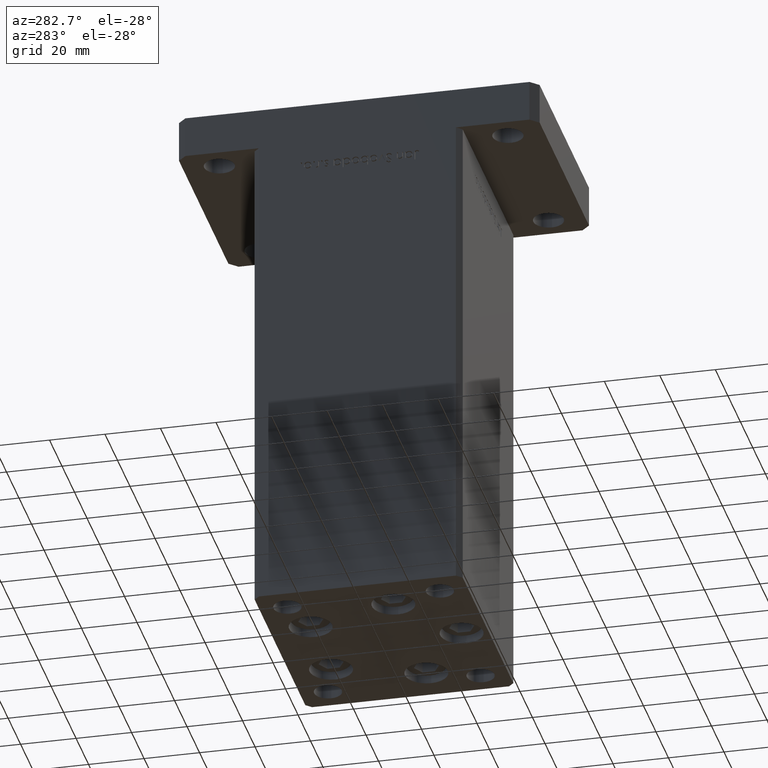
[diagram: clean part render]
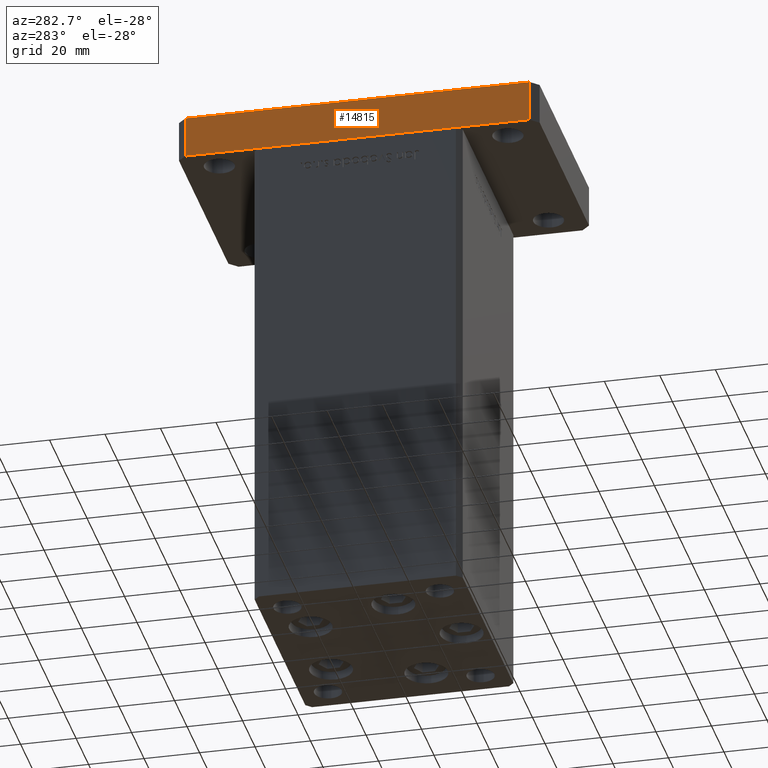
[diagram: same view with one face highlighted and labeled with its STEP entity id]
A machine part, auxiliary view. The second image highlights one B-rep face of the part: STEP entity #14815.
In plain terms, the highlighted planar face has unit normal (1, 0, 0).
Its self-contained STEP definition (entity closure, byte-faithful):
#282 = VERTEX_POINT ( 'NONE', #20340 ) ;
#459 = LINE ( 'NONE', #16966, #28863 ) ;
#2697 = VERTEX_POINT ( 'NONE', #23056 ) ;
#5038 = AXIS2_PLACEMENT_3D ( 'NONE', #48224, #18949, #15410 ) ;
#6388 = CARTESIAN_POINT ( 'NONE',  ( -42.49999999999999289, -62.00000000000001421, 15.00000000000000000 ) ) ;
#8395 = VECTOR ( 'NONE', #30206, 1000.000000000000000 ) ;
#8419 = CARTESIAN_POINT ( 'NONE',  ( -42.50000000000002132, 62.00000000000000711, 0.000000000000000000 ) ) ;
#9637 = EDGE_CURVE ( 'NONE', #282, #38320, #11307, .T. ) ;
#11307 = LINE ( 'NONE', #32171, #12639 ) ;
#12639 = VECTOR ( 'NONE', #28371, 1000.000000000000000 ) ;
#14815 = ADVANCED_FACE ( 'NONE', ( #19216 ), #23291, .F. ) ;
#15410 = DIRECTION ( 'NONE',  ( -2.238352872228137677E-16, 1.000000000000000000, 0.000000000000000000 ) ) ;
#16966 = CARTESIAN_POINT ( 'NONE',  ( -42.49999999999999289, -62.00000000000001421, 15.00000000000000000 ) ) ;
#17214 = VERTEX_POINT ( 'NONE', #8419 ) ;
#17744 = CARTESIAN_POINT ( 'NONE',  ( -42.50000000000002132, 62.00000000000000711, 15.00000000000000000 ) ) ;
#18949 = DIRECTION ( 'NONE',  ( 1.000000000000000000, 2.238352872228137677E-16, -0.000000000000000000 ) ) ;
#19198 = ORIENTED_EDGE ( 'NONE', *, *, #27790, .F. ) ;
#19216 = FACE_OUTER_BOUND ( 'NONE', #23210, .T. ) ;
#20340 = CARTESIAN_POINT ( 'NONE',  ( -42.50000000000002132, 62.00000000000000711, 15.00000000000000000 ) ) ;
#23056 = CARTESIAN_POINT ( 'NONE',  ( -42.49999999999999289, -62.00000000000001421, 0.000000000000000000 ) ) ;
#23210 = EDGE_LOOP ( 'NONE', ( #26885, #19198, #53408, #51423 ) ) ;
#23291 = PLANE ( 'NONE',  #5038 ) ;
#25890 = LINE ( 'NONE', #17744, #8395 ) ;
#26885 = ORIENTED_EDGE ( 'NONE', *, *, #34010, .T. ) ;
#27790 = EDGE_CURVE ( 'NONE', #38320, #2697, #459, .T. ) ;
#28371 = DIRECTION ( 'NONE',  ( 2.238352872228137677E-16, -1.000000000000000000, 0.000000000000000000 ) ) ;
#28863 = VECTOR ( 'NONE', #30496, 1000.000000000000000 ) ;
#30206 = DIRECTION ( 'NONE',  ( -0.000000000000000000, -0.000000000000000000, -1.000000000000000000 ) ) ;
#30496 = DIRECTION ( 'NONE',  ( -0.000000000000000000, -0.000000000000000000, -1.000000000000000000 ) ) ;
#32171 = CARTESIAN_POINT ( 'NONE',  ( -42.50000000000002132, 62.00000000000000711, 15.00000000000000000 ) ) ;
#34010 = EDGE_CURVE ( 'NONE', #17214, #2697, #52693, .T. ) ;
#38320 = VERTEX_POINT ( 'NONE', #6388 ) ;
#42890 = EDGE_CURVE ( 'NONE', #282, #17214, #25890, .T. ) ;
#43475 = CARTESIAN_POINT ( 'NONE',  ( -42.50000000000002132, 62.00000000000000711, 0.000000000000000000 ) ) ;
#47548 = DIRECTION ( 'NONE',  ( 2.238352872228137677E-16, -1.000000000000000000, 0.000000000000000000 ) ) ;
#48070 = VECTOR ( 'NONE', #47548, 1000.000000000000000 ) ;
#48224 = CARTESIAN_POINT ( 'NONE',  ( -42.50000000000002132, 62.00000000000000711, 15.00000000000000000 ) ) ;
#51423 = ORIENTED_EDGE ( 'NONE', *, *, #42890, .T. ) ;
#52693 = LINE ( 'NONE', #43475, #48070 ) ;
#53408 = ORIENTED_EDGE ( 'NONE', *, *, #9637, .F. ) ;